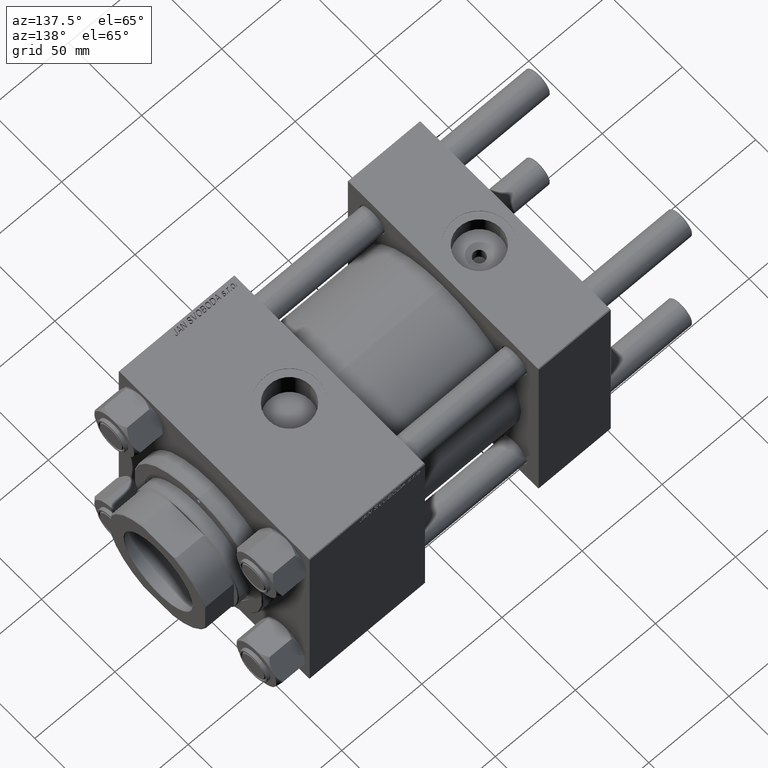
[diagram: clean part render]
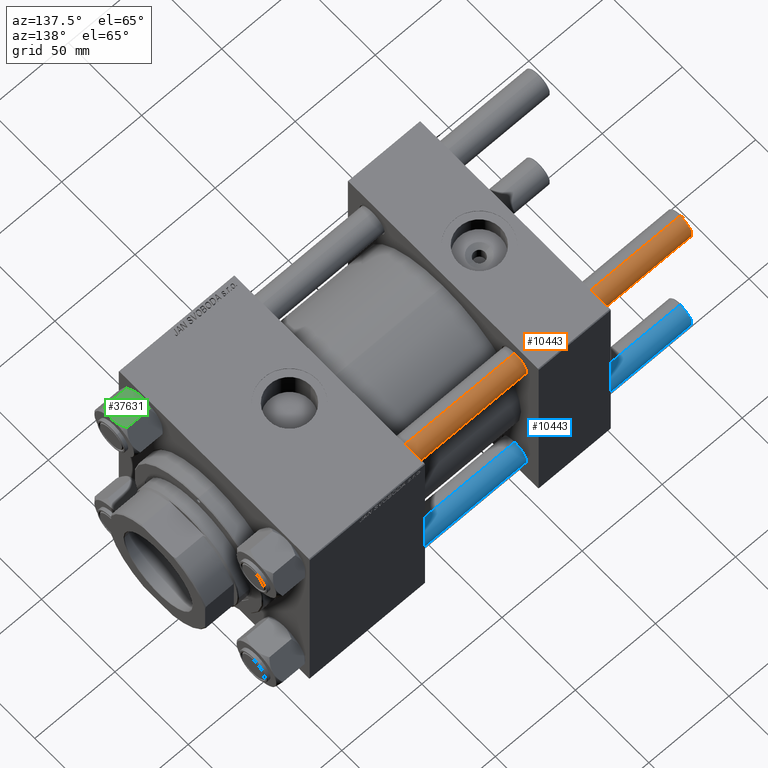
[diagram: same view with three faces highlighted in distinct colors, each labeled with its STEP entity id]
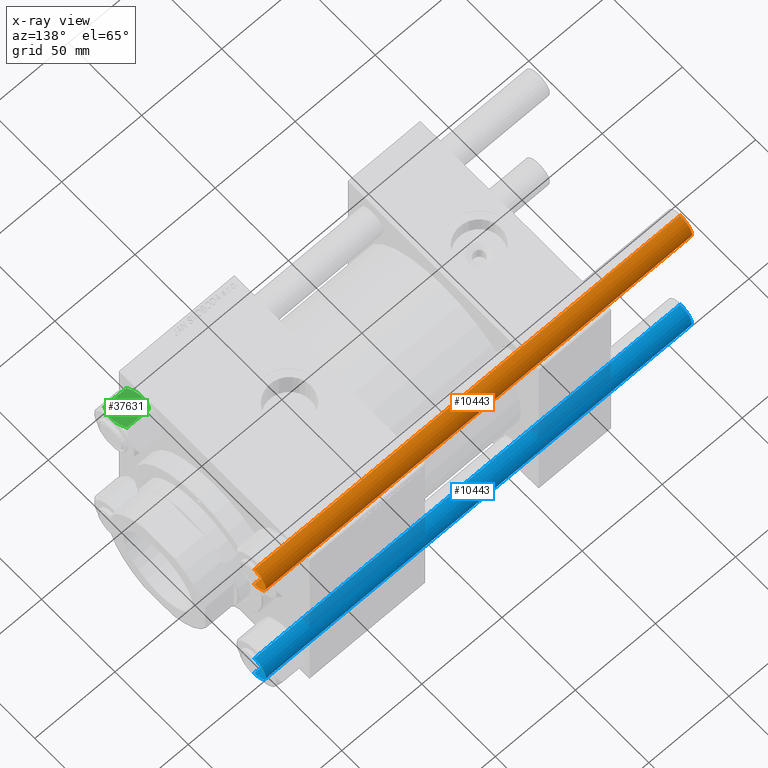
[diagram: x-ray of the same camera — body ghosted, the three highlighted faces saturated]
A machine part, auxiliary view with three faces highlighted in distinct colors.
The next image is the same camera in x-ray (body ghosted, the three faces saturated) — at least one of them is partly hidden behind the body in this view.
Their STEP definitions:

[orange] entity #10443 — the highlighted cylindrical surface (edge-blend (fillet) strip) has radius 8 mm, axis along (-1, -0, -0).
#122 = DIRECTION ( 'NONE',  ( -0.000000000000000000, -0.000000000000000000, -1.000000000000000000 ) ) ;
#5180 = VECTOR ( 'NONE', #122, 1000.000000000000000 ) ;
#8025 = EDGE_CURVE ( 'NONE', #29607, #33969, #20235, .T. ) ;
#8362 = ORIENTED_EDGE ( 'NONE', *, *, #13047, .T. ) ;
#8438 = EDGE_CURVE ( 'NONE', #9665, #33969, #30978, .T. ) ;
#9665 = VERTEX_POINT ( 'NONE', #36089 ) ;
#10443 = ADVANCED_FACE ( 'NONE', ( #48456 ), #24744, .T. ) ;
#11604 = CARTESIAN_POINT ( 'NONE',  ( -8.000000000000000000, 0.000000000000000000, 267.0000000000000000 ) ) ;
#12777 = DIRECTION ( 'NONE',  ( -0.000000000000000000, -0.000000000000000000, -1.000000000000000000 ) ) ;
#13047 = EDGE_CURVE ( 'NONE', #49894, #29607, #34051, .T. ) ;
#13277 = DIRECTION ( 'NONE',  ( -1.000000000000000000, 0.000000000000000000, 0.000000000000000000 ) ) ;
#17586 = CARTESIAN_POINT ( 'NONE',  ( 0.000000000000000000, 0.000000000000000000, 267.0000000000000000 ) ) ;
#17993 = CARTESIAN_POINT ( 'NONE',  ( 8.000000000000000000, 9.797174393178825657E-16, 267.0000000000000000 ) ) ;
#18546 = CARTESIAN_POINT ( 'NONE',  ( 0.000000000000000000, 0.000000000000000000, 0.5000000000000559552 ) ) ;
#20235 = CIRCLE ( 'NONE', #39770, 8.000000000000000000 ) ;
#23132 = AXIS2_PLACEMENT_3D ( 'NONE', #17586, #12777, #13277 ) ;
#23724 = CARTESIAN_POINT ( 'NONE',  ( -8.000000000000000000, 0.000000000000000000, 0.5000000000000559552 ) ) ;
#24744 = CYLINDRICAL_SURFACE ( 'NONE', #23132, 8.000000000000000000 ) ;
#24758 = DIRECTION ( 'NONE',  ( 1.000000000000000000, 0.000000000000000000, 0.000000000000000000 ) ) ;
#25955 = DIRECTION ( 'NONE',  ( -0.000000000000000000, -0.000000000000000000, 1.000000000000000000 ) ) ;
#29607 = VERTEX_POINT ( 'NONE', #32231 ) ;
#30559 = VECTOR ( 'NONE', #41452, 1000.000000000000000 ) ;
#30978 = LINE ( 'NONE', #11604, #5180 ) ;
#31053 = CIRCLE ( 'NONE', #38365, 8.000000000000000000 ) ;
#31648 = ORIENTED_EDGE ( 'NONE', *, *, #8025, .T. ) ;
#31660 = EDGE_CURVE ( 'NONE', #9665, #49894, #31053, .T. ) ;
#32231 = CARTESIAN_POINT ( 'NONE',  ( 8.000000000000000000, 9.797174393178825657E-16, 0.5000000000000559552 ) ) ;
#33969 = VERTEX_POINT ( 'NONE', #23724 ) ;
#34051 = LINE ( 'NONE', #17993, #30559 ) ;
#36089 = CARTESIAN_POINT ( 'NONE',  ( -8.000000000000000000, 0.000000000000000000, 266.5000000000000568 ) ) ;
#36933 = EDGE_LOOP ( 'NONE', ( #40753, #8362, #31648, #45107 ) ) ;
#38365 = AXIS2_PLACEMENT_3D ( 'NONE', #47728, #47986, #24758 ) ;
#38426 = DIRECTION ( 'NONE',  ( 1.000000000000000000, 0.000000000000000000, 0.000000000000000000 ) ) ;
#39770 = AXIS2_PLACEMENT_3D ( 'NONE', #18546, #25955, #38426 ) ;
#40753 = ORIENTED_EDGE ( 'NONE', *, *, #31660, .T. ) ;
#41452 = DIRECTION ( 'NONE',  ( -0.000000000000000000, -0.000000000000000000, -1.000000000000000000 ) ) ;
#44957 = CARTESIAN_POINT ( 'NONE',  ( 8.000000000000000000, 9.797174393178825657E-16, 266.5000000000000568 ) ) ;
#45107 = ORIENTED_EDGE ( 'NONE', *, *, #8438, .F. ) ;
#47728 = CARTESIAN_POINT ( 'NONE',  ( 0.000000000000000000, 0.000000000000000000, 266.5000000000000568 ) ) ;
#47986 = DIRECTION ( 'NONE',  ( 0.000000000000000000, 0.000000000000000000, -1.000000000000000000 ) ) ;
#48456 = FACE_OUTER_BOUND ( 'NONE', #36933, .T. ) ;
#49894 = VERTEX_POINT ( 'NONE', #44957 ) ;

[blue] entity #10443 — the highlighted cylindrical surface (edge-blend (fillet) strip) has radius 8 mm, axis along (1, 0, -0).
#122 = DIRECTION ( 'NONE',  ( -0.000000000000000000, -0.000000000000000000, -1.000000000000000000 ) ) ;
#5180 = VECTOR ( 'NONE', #122, 1000.000000000000000 ) ;
#8025 = EDGE_CURVE ( 'NONE', #29607, #33969, #20235, .T. ) ;
#8362 = ORIENTED_EDGE ( 'NONE', *, *, #13047, .T. ) ;
#8438 = EDGE_CURVE ( 'NONE', #9665, #33969, #30978, .T. ) ;
#9665 = VERTEX_POINT ( 'NONE', #36089 ) ;
#10443 = ADVANCED_FACE ( 'NONE', ( #48456 ), #24744, .T. ) ;
#11604 = CARTESIAN_POINT ( 'NONE',  ( -8.000000000000000000, 0.000000000000000000, 267.0000000000000000 ) ) ;
#12777 = DIRECTION ( 'NONE',  ( -0.000000000000000000, -0.000000000000000000, -1.000000000000000000 ) ) ;
#13047 = EDGE_CURVE ( 'NONE', #49894, #29607, #34051, .T. ) ;
#13277 = DIRECTION ( 'NONE',  ( -1.000000000000000000, 0.000000000000000000, 0.000000000000000000 ) ) ;
#17586 = CARTESIAN_POINT ( 'NONE',  ( 0.000000000000000000, 0.000000000000000000, 267.0000000000000000 ) ) ;
#17993 = CARTESIAN_POINT ( 'NONE',  ( 8.000000000000000000, 9.797174393178825657E-16, 267.0000000000000000 ) ) ;
#18546 = CARTESIAN_POINT ( 'NONE',  ( 0.000000000000000000, 0.000000000000000000, 0.5000000000000559552 ) ) ;
#20235 = CIRCLE ( 'NONE', #39770, 8.000000000000000000 ) ;
#23132 = AXIS2_PLACEMENT_3D ( 'NONE', #17586, #12777, #13277 ) ;
#23724 = CARTESIAN_POINT ( 'NONE',  ( -8.000000000000000000, 0.000000000000000000, 0.5000000000000559552 ) ) ;
#24744 = CYLINDRICAL_SURFACE ( 'NONE', #23132, 8.000000000000000000 ) ;
#24758 = DIRECTION ( 'NONE',  ( 1.000000000000000000, 0.000000000000000000, 0.000000000000000000 ) ) ;
#25955 = DIRECTION ( 'NONE',  ( -0.000000000000000000, -0.000000000000000000, 1.000000000000000000 ) ) ;
#29607 = VERTEX_POINT ( 'NONE', #32231 ) ;
#30559 = VECTOR ( 'NONE', #41452, 1000.000000000000000 ) ;
#30978 = LINE ( 'NONE', #11604, #5180 ) ;
#31053 = CIRCLE ( 'NONE', #38365, 8.000000000000000000 ) ;
#31648 = ORIENTED_EDGE ( 'NONE', *, *, #8025, .T. ) ;
#31660 = EDGE_CURVE ( 'NONE', #9665, #49894, #31053, .T. ) ;
#32231 = CARTESIAN_POINT ( 'NONE',  ( 8.000000000000000000, 9.797174393178825657E-16, 0.5000000000000559552 ) ) ;
#33969 = VERTEX_POINT ( 'NONE', #23724 ) ;
#34051 = LINE ( 'NONE', #17993, #30559 ) ;
#36089 = CARTESIAN_POINT ( 'NONE',  ( -8.000000000000000000, 0.000000000000000000, 266.5000000000000568 ) ) ;
#36933 = EDGE_LOOP ( 'NONE', ( #40753, #8362, #31648, #45107 ) ) ;
#38365 = AXIS2_PLACEMENT_3D ( 'NONE', #47728, #47986, #24758 ) ;
#38426 = DIRECTION ( 'NONE',  ( 1.000000000000000000, 0.000000000000000000, 0.000000000000000000 ) ) ;
#39770 = AXIS2_PLACEMENT_3D ( 'NONE', #18546, #25955, #38426 ) ;
#40753 = ORIENTED_EDGE ( 'NONE', *, *, #31660, .T. ) ;
#41452 = DIRECTION ( 'NONE',  ( -0.000000000000000000, -0.000000000000000000, -1.000000000000000000 ) ) ;
#44957 = CARTESIAN_POINT ( 'NONE',  ( 8.000000000000000000, 9.797174393178825657E-16, 266.5000000000000568 ) ) ;
#45107 = ORIENTED_EDGE ( 'NONE', *, *, #8438, .F. ) ;
#47728 = CARTESIAN_POINT ( 'NONE',  ( 0.000000000000000000, 0.000000000000000000, 266.5000000000000568 ) ) ;
#47986 = DIRECTION ( 'NONE',  ( 0.000000000000000000, 0.000000000000000000, -1.000000000000000000 ) ) ;
#48456 = FACE_OUTER_BOUND ( 'NONE', #36933, .T. ) ;
#49894 = VERTEX_POINT ( 'NONE', #44957 ) ;

[green] entity #37631 — the highlighted planar face has unit normal (0, 0.097, -0.9953).
#816 = DIRECTION ( 'NONE',  ( 0.5000000000000004441, -0.8660254037844383745, 0.000000000000000000 ) ) ;
#1526 = VERTEX_POINT ( 'NONE', #6288 ) ;
#1966 = CARTESIAN_POINT ( 'NONE',  ( 11.71499999999999808, 6.763658403556471299, 0.000000000000000000 ) ) ;
#2995 = VERTEX_POINT ( 'NONE', #19405 ) ;
#3151 = VECTOR ( 'NONE', #21853, 1000.000000000000114 ) ;
#3321 = ORIENTED_EDGE ( 'NONE', *, *, #29936, .F. ) ;
#3643 = CARTESIAN_POINT ( 'NONE',  ( 7.903528262322678799, 13.36532110482642466, -16.00000000000000000 ) ) ;
#3894 = CARTESIAN_POINT ( 'NONE',  ( 11.04378428799594580, 7.926238119586004771, -17.94910618364698252 ) ) ;
#4141 = VERTEX_POINT ( 'NONE', #24395 ) ;
#4306 = EDGE_CURVE ( 'NONE', #32135, #49550, #11853, .T. ) ;
#6166 = B_SPLINE_CURVE_WITH_KNOTS ( 'NONE', 3,
 ( #17637, #45184, #30381, #41850, #45436, #48762, #33176, #6434 ),
 .UNSPECIFIED., .F., .F.,
 ( 4, 2, 2, 4 ),
 ( 0.007890825462474411814, 0.01181022244528551722, 0.01376992093669107166, 0.01572961942809662783 ),
 .UNSPECIFIED. ) ;
#6288 = CARTESIAN_POINT ( 'NONE',  ( 7.809999999999994280, 13.52731680711294082, -16.00000000000000000 ) ) ;
#6434 = CARTESIAN_POINT ( 'NONE',  ( 15.52647173767732447, 0.1619957022865230467, -16.00000000000000000 ) ) ;
#6538 = CARTESIAN_POINT ( 'NONE',  ( 13.04337073483127973, 4.462852799541093596, -0.2430846701013001376 ) ) ;
#6698 = ORIENTED_EDGE ( 'NONE', *, *, #34390, .F. ) ;
#6775 = VECTOR ( 'NONE', #10431, 1000.000000000000114 ) ;
#6832 = CARTESIAN_POINT ( 'NONE',  ( 7.809999999999995168, 13.52731680711294082, -18.00000000000000000 ) ) ;
#7271 = CARTESIAN_POINT ( 'NONE',  ( 11.71499999999999808, 6.763658403556471299, -18.00000000000000000 ) ) ;
#7548 = B_SPLINE_CURVE_WITH_KNOTS ( 'NONE', 3,
 ( #1966, #17512, #49389, #22103, #48383, #37643, #45569, #49141 ),
 .UNSPECIFIED., .F., .F.,
 ( 4, 2, 2, 4 ),
 ( 0.007890825462474429161, 0.01181022244528553977, 0.01376992093669109421, 0.01572961942809664865 ),
 .UNSPECIFIED. ) ;
#7830 = CARTESIAN_POINT ( 'NONE',  ( 15.52647173767732447, 0.1619957022865230467, -16.00000000000000000 ) ) ;
#8844 = VECTOR ( 'NONE', #19992, 1000.000000000000000 ) ;
#8977 = VERTEX_POINT ( 'NONE', #24365 ) ;
#9985 = ORIENTED_EDGE ( 'NONE', *, *, #50061, .F. ) ;
#10431 = DIRECTION ( 'NONE',  ( 0.5000000000000004441, -0.8660254037844383745, 0.000000000000000000 ) ) ;
#10603 = CARTESIAN_POINT ( 'NONE',  ( 15.62000000000000455, 5.009671660077301770E-15, -16.00000000000000000 ) ) ;
#10862 = CARTESIAN_POINT ( 'NONE',  ( 15.52647173767732447, 0.1619957022865230467, -2.000000000000000000 ) ) ;
#11853 = LINE ( 'NONE', #39616, #8844 ) ;
#12175 = LINE ( 'NONE', #28721, #43772 ) ;
#12836 = VERTEX_POINT ( 'NONE', #7830 ) ;
#13537 = CARTESIAN_POINT ( 'NONE',  ( 7.809999999999995168, 13.52731680711294082, -16.00000000000000000 ) ) ;
#13938 = CARTESIAN_POINT ( 'NONE',  ( 13.36540581434586983, 3.905071680002333512, -0.3836066851120609744 ) ) ;
#13957 = CARTESIAN_POINT ( 'NONE',  ( 7.809999999999995168, 13.52731680711294082, -1.999999999999998224 ) ) ;
#14014 = LINE ( 'NONE', #45881, #6775 ) ;
#14643 = CARTESIAN_POINT ( 'NONE',  ( 9.114548888011784200, 11.26777185211903642, -17.08577173959729834 ) ) ;
#14675 = ORIENTED_EDGE ( 'NONE', *, *, #4306, .F. ) ;
#15075 = EDGE_CURVE ( 'NONE', #2995, #44047, #42787, .T. ) ;
#15169 = CARTESIAN_POINT ( 'NONE',  ( 15.62000000000000455, 5.009671660077301770E-15, -1.999999999999998224 ) ) ;
#16452 = AXIS2_PLACEMENT_3D ( 'NONE', #6832, #34359, #18549 ) ;
#17512 = CARTESIAN_POINT ( 'NONE',  ( 11.05297796109638142, 7.910314210667887203, -1.616138863361205047E-15 ) ) ;
#17637 = CARTESIAN_POINT ( 'NONE',  ( 11.71499999999999808, 6.763658403556471299, -18.00000000000000000 ) ) ;
#17686 = VECTOR ( 'NONE', #816, 1000.000000000000114 ) ;
#17792 = EDGE_LOOP ( 'NONE', ( #9985, #33003, #3321, #6698, #22148, #49939, #14675, #19648, #18824, #39245 ) ) ;
#18263 = EDGE_CURVE ( 'NONE', #1526, #23522, #12175, .T. ) ;
#18298 = FACE_OUTER_BOUND ( 'NONE', #17792, .T. ) ;
#18549 = DIRECTION ( 'NONE',  ( 0.5000000000000004441, -0.8660254037844383745, 0.000000000000000000 ) ) ;
#18824 = ORIENTED_EDGE ( 'NONE', *, *, #27630, .F. ) ;
#18948 = LINE ( 'NONE', #45493, #49746 ) ;
#19188 = CARTESIAN_POINT ( 'NONE',  ( 10.06459418565412456, 9.622245127110609531, -17.61639331488793303 ) ) ;
#19405 = CARTESIAN_POINT ( 'NONE',  ( 7.903528262322678799, 13.36532110482642466, -16.00000000000000000 ) ) ;
#19451 = CARTESIAN_POINT ( 'NONE',  ( 11.71499999999999808, 6.763658403556471299, -18.00000000000000000 ) ) ;
#19648 = ORIENTED_EDGE ( 'NONE', *, *, #40051, .F. ) ;
#19992 = DIRECTION ( 'NONE',  ( -0.000000000000000000, -0.000000000000000000, 1.000000000000000000 ) ) ;
#21339 = LINE ( 'NONE', #13957, #3151 ) ;
#21853 = DIRECTION ( 'NONE',  ( -0.5000000000000004441, 0.8660254037844383745, 0.000000000000000000 ) ) ;
#22103 = CARTESIAN_POINT ( 'NONE',  ( 9.439480280627261521, 10.70497417113492489, -0.7317196846281144307 ) ) ;
#22148 = ORIENTED_EDGE ( 'NONE', *, *, #22675, .F. ) ;
#22675 = EDGE_CURVE ( 'NONE', #8977, #46844, #26540, .T. ) ;
#23522 = VERTEX_POINT ( 'NONE', #45104 ) ;
#24365 = CARTESIAN_POINT ( 'NONE',  ( 15.52647173767732447, 0.1619957022865230467, -2.000000000000000000 ) ) ;
#24395 = CARTESIAN_POINT ( 'NONE',  ( 7.903528262322678799, 13.36532110482642466, -2.000000000000000000 ) ) ;
#24732 = EDGE_CURVE ( 'NONE', #49550, #8977, #21339, .T. ) ;
#26540 = B_SPLINE_CURVE_WITH_KNOTS ( 'NONE', 3,
 ( #10862, #29732, #38380, #13938, #6538, #41197, #33295, #41952 ),
 .UNSPECIFIED., .F., .F.,
 ( 4, 2, 2, 4 ),
 ( 4.472842642033888912E-07, 0.003945636373369316996, 0.005918230917921872211, 0.007890825462474429161 ),
 .UNSPECIFIED. ) ;
#26873 = DIRECTION ( 'NONE',  ( -0.5000000000000004441, 0.8660254037844383745, 0.000000000000000000 ) ) ;
#27630 = EDGE_CURVE ( 'NONE', #44047, #12836, #6166, .T. ) ;
#28721 = CARTESIAN_POINT ( 'NONE',  ( 7.809999999999995168, 13.52731680711294082, -18.00000000000000000 ) ) ;
#29732 = CARTESIAN_POINT ( 'NONE',  ( 14.92760668674625180, 1.199260397376467502, -1.411989271640067489 ) ) ;
#29936 = EDGE_CURVE ( 'NONE', #4141, #23522, #18948, .T. ) ;
#30381 = CARTESIAN_POINT ( 'NONE',  ( 13.02784502466562166, 4.489744118371596038, -17.80281335400754017 ) ) ;
#32135 = VERTEX_POINT ( 'NONE', #10603 ) ;
#33003 = ORIENTED_EDGE ( 'NONE', *, *, #18263, .T. ) ;
#33176 = CARTESIAN_POINT ( 'NONE',  ( 15.22736220980735489, 0.6800686015852402955, -16.29368822085855228 ) ) ;
#33295 = CARTESIAN_POINT ( 'NONE',  ( 12.04818928091285635, 6.186557640478070219, -1.789310043688750938E-15 ) ) ;
#34359 = DIRECTION ( 'NONE',  ( -0.8660254037844383745, -0.5000000000000004441, 0.000000000000000000 ) ) ;
#34390 = EDGE_CURVE ( 'NONE', #46844, #4141, #7548, .T. ) ;
#34745 = CARTESIAN_POINT ( 'NONE',  ( 10.38662926516871998, 9.064464007571849891, -17.75691532989869614 ) ) ;
#37631 = ADVANCED_FACE ( 'NONE', ( #18298 ), #41760, .F. ) ;
#37643 = CARTESIAN_POINT ( 'NONE',  ( 8.506059550806616798, 12.32170630002229927, -1.434462921875002239 ) ) ;
#38380 = CARTESIAN_POINT ( 'NONE',  ( 14.31545111198821196, 2.259544954993908394, -0.9142282604026947812 ) ) ;
#39245 = ORIENTED_EDGE ( 'NONE', *, *, #15075, .F. ) ;
#39429 = DIRECTION ( 'NONE',  ( -0.000000000000000000, -0.000000000000000000, 1.000000000000000000 ) ) ;
#39616 = CARTESIAN_POINT ( 'NONE',  ( 15.62000000000000455, 5.009671660077301770E-15, -18.00000000000000000 ) ) ;
#39919 = CARTESIAN_POINT ( 'NONE',  ( 11.71499999999999808, 6.763658403556471299, 0.000000000000000000 ) ) ;
#40051 = EDGE_CURVE ( 'NONE', #12836, #32135, #14014, .T. ) ;
#41197 = CARTESIAN_POINT ( 'NONE',  ( 12.38621571200405391, 5.601078687526936939, -0.05089381635301767209 ) ) ;
#41760 = PLANE ( 'NONE',  #16452 ) ;
#41850 = CARTESIAN_POINT ( 'NONE',  ( 13.99051971937273819, 2.822342635978020819, -17.26828031537188934 ) ) ;
#41893 = CARTESIAN_POINT ( 'NONE',  ( 8.502393313253756801, 12.32805640973648131, -16.58801072835992585 ) ) ;
#41952 = CARTESIAN_POINT ( 'NONE',  ( 11.71499999999999808, 6.763658403556471299, 0.000000000000000000 ) ) ;
#42787 = B_SPLINE_CURVE_WITH_KNOTS ( 'NONE', 3,
 ( #3643, #41893, #14643, #19188, #34745, #3894, #50315, #19451 ),
 .UNSPECIFIED., .F., .F.,
 ( 4, 2, 2, 4 ),
 ( 4.472842641837737786E-07, 0.003945636373369299649, 0.005918230917921855731, 0.007890825462474411814 ),
 .UNSPECIFIED. ) ;
#43772 = VECTOR ( 'NONE', #39429, 1000.000000000000000 ) ;
#44047 = VERTEX_POINT ( 'NONE', #7271 ) ;
#45104 = CARTESIAN_POINT ( 'NONE',  ( 7.809999999999994280, 13.52731680711294082, -1.999999999999998224 ) ) ;
#45184 = CARTESIAN_POINT ( 'NONE',  ( 12.37702203890362362, 5.617002596445060725, -17.99999999999999645 ) ) ;
#45436 = CARTESIAN_POINT ( 'NONE',  ( 14.30591678195075822, 2.276058899034911320, -17.05261278537718539 ) ) ;
#45493 = CARTESIAN_POINT ( 'NONE',  ( 7.809999999999995168, 13.52731680711294082, -1.999999999999998224 ) ) ;
#45569 = CARTESIAN_POINT ( 'NONE',  ( 8.202637790192643052, 12.84724820552770197, -1.706311779141444163 ) ) ;
#45881 = CARTESIAN_POINT ( 'NONE',  ( 7.809999999999995168, 13.52731680711294082, -16.00000000000000000 ) ) ;
#46844 = VERTEX_POINT ( 'NONE', #39919 ) ;
#48383 = CARTESIAN_POINT ( 'NONE',  ( 9.124083218049234389, 11.25125790807803483, -0.9473872146228138336 ) ) ;
#48475 = LINE ( 'NONE', #13537, #17686 ) ;
#48762 = CARTESIAN_POINT ( 'NONE',  ( 14.92394044919337581, 1.205610507090648209, -16.56553707812498999 ) ) ;
#49141 = CARTESIAN_POINT ( 'NONE',  ( 7.903528262322678799, 13.36532110482642466, -2.000000000000000000 ) ) ;
#49389 = CARTESIAN_POINT ( 'NONE',  ( 10.40215497533437450, 9.037572688741349225, -0.1971866459924571102 ) ) ;
#49550 = VERTEX_POINT ( 'NONE', #15169 ) ;
#49746 = VECTOR ( 'NONE', #26873, 1000.000000000000114 ) ;
#49939 = ORIENTED_EDGE ( 'NONE', *, *, #24732, .F. ) ;
#50061 = EDGE_CURVE ( 'NONE', #1526, #2995, #48475, .T. ) ;
#50315 = CARTESIAN_POINT ( 'NONE',  ( 11.38181071908714337, 7.340759166634874155, -17.99999999999999289 ) ) ;